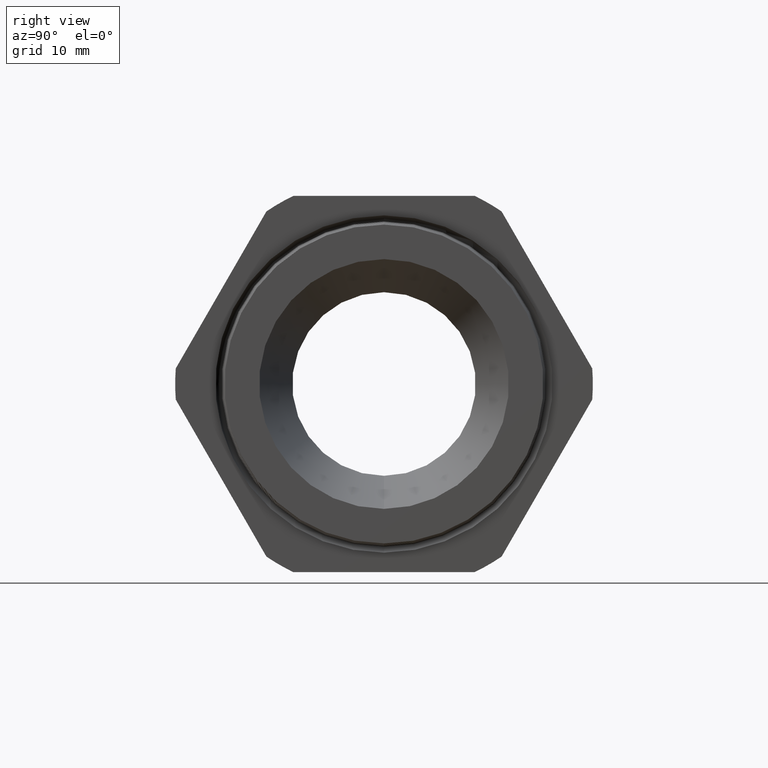
[diagram: clean part render]
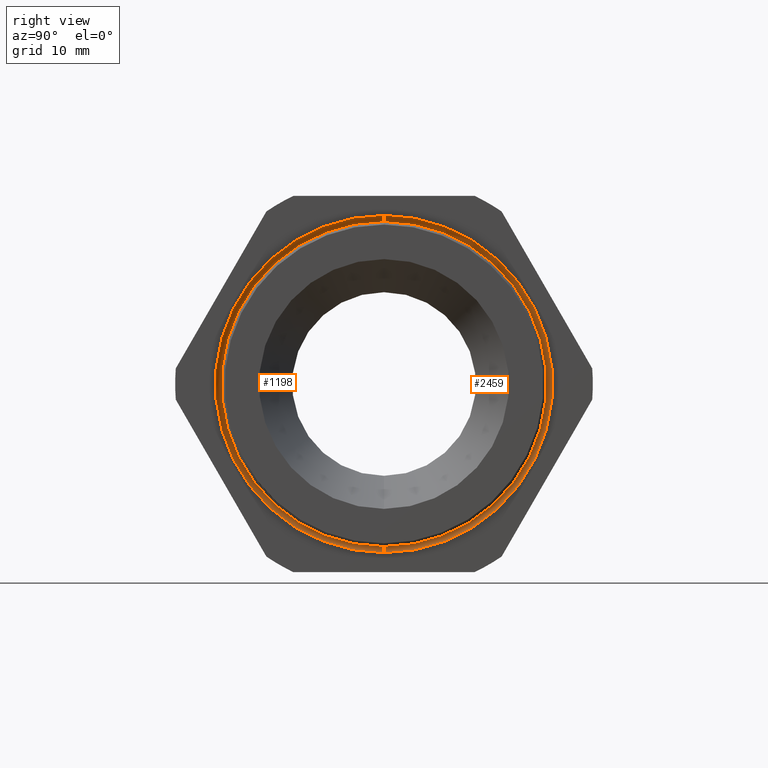
[diagram: same view with one multi-face feature highlighted, each face labeled with its STEP entity id]
A machine part, right view. The highlighted faces form ONE feature: a constant-radius fillet chain: 2 tangent blend faces with common blend radius 0.9525 mm. The faces share edges in the B-rep.
Their STEP definitions:
[1] entity #1198 (Torus):
#1139 = EDGE_CURVE ( 'NONE', #1140, #1153, #2659, .T. ) ;
#1140 = VERTEX_POINT ( 'NONE', #2654 ) ;
#1142 = ORIENTED_EDGE ( 'NONE', *, *, #1143, .F. ) ;
#1143 = EDGE_CURVE ( 'NONE', #1210, #1140, #2652, .T. ) ;
#1151 = ORIENTED_EDGE ( 'NONE', *, *, #1139, .F. ) ;
#1152 = EDGE_CURVE ( 'NONE', #1212, #1153, #2693, .T. ) ;
#1153 = VERTEX_POINT ( 'NONE', #2688 ) ;
#1198 = ADVANCED_FACE ( 'NONE', ( #2786 ), #2785, .F. ) ;
#1199 = EDGE_LOOP ( 'NONE', ( #1207, #1208, #1151, #1142 ) ) ;
#1207 = ORIENTED_EDGE ( 'NONE', *, *, #1215, .F. ) ;
#1208 = ORIENTED_EDGE ( 'NONE', *, *, #1152, .T. ) ;
#1210 = VERTEX_POINT ( 'NONE', #2830 ) ;
#1212 = VERTEX_POINT ( 'NONE', #2829 ) ;
#1215 = EDGE_CURVE ( 'NONE', #1212, #1210, #2828, .T. ) ;
#2648 = DIRECTION ( 'NONE',  ( 0.0000000000000000000, 0.0000000000000000000, -1.000000000000000000 ) ) ;
#2649 = DIRECTION ( 'NONE',  ( 0.0000000000000000000, -1.000000000000000000, 0.0000000000000000000 ) ) ;
#2650 = CARTESIAN_POINT ( 'NONE',  ( -0.3089999999999999400, 0.0000000000000000000, -0.8990656650015197400 ) ) ;
#2651 = AXIS2_PLACEMENT_3D ( 'NONE', #2650, #2649, #2648 ) ;
#2652 = CIRCLE ( 'NONE', #2651, 0.03749999999999994300 ) ;
#2654 = CARTESIAN_POINT ( 'NONE',  ( -0.3100000000000000000, 0.0000000000000000000, -0.9365523292969728500 ) ) ;
#2655 = DIRECTION ( 'NONE',  ( 0.0000000000000000000, 0.0000000000000000000, -1.000000000000000000 ) ) ;
#2656 = DIRECTION ( 'NONE',  ( -1.000000000000000000, 0.0000000000000000000, 0.0000000000000000000 ) ) ;
#2657 = CARTESIAN_POINT ( 'NONE',  ( -0.3100000000000000000, 0.0000000000000000000, 0.0000000000000000000 ) ) ;
#2658 = AXIS2_PLACEMENT_3D ( 'NONE', #2657, #2656, #2655 ) ;
#2659 = CIRCLE ( 'NONE', #2658, 0.9365523292969728500 ) ;
#2688 = CARTESIAN_POINT ( 'NONE',  ( -0.3100000000000000000, 1.146945812307535500E-016, 0.9365523292969728500 ) ) ;
#2689 = DIRECTION ( 'NONE',  ( 0.0000000000000000000, 1.224646799147353700E-016, 1.000000000000000000 ) ) ;
#2690 = DIRECTION ( 'NONE',  ( 0.0000000000000000000, 1.000000000000000000, -1.224646799147353200E-016 ) ) ;
#2691 = CARTESIAN_POINT ( 'NONE',  ( -0.3089999999999999400, 1.101037888867397800E-016, 0.8990656650015197400 ) ) ;
#2692 = AXIS2_PLACEMENT_3D ( 'NONE', #2691, #2690, #2689 ) ;
#2693 = CIRCLE ( 'NONE', #2692, 0.03749999999999994300 ) ;
#2781 = DIRECTION ( 'NONE',  ( 0.0000000000000000000, 0.0000000000000000000, -1.000000000000000000 ) ) ;
#2782 = DIRECTION ( 'NONE',  ( 1.000000000000000000, 0.0000000000000000000, 0.0000000000000000000 ) ) ;
#2783 = CARTESIAN_POINT ( 'NONE',  ( -0.3089999999999999400, 0.0000000000000000000, 0.0000000000000000000 ) ) ;
#2784 = AXIS2_PLACEMENT_3D ( 'NONE', #2783, #2782, #2781 ) ;
#2785 = TOROIDAL_SURFACE ( 'NONE', #2784, 0.8990656650015197400, 0.03749999999999999900 ) ;
#2786 = FACE_OUTER_BOUND ( 'NONE', #1199, .T. ) ;
#2824 = DIRECTION ( 'NONE',  ( 0.0000000000000000000, 0.0000000000000000000, -1.000000000000000000 ) ) ;
#2825 = DIRECTION ( 'NONE',  ( 1.000000000000000000, 0.0000000000000000000, 0.0000000000000000000 ) ) ;
#2826 = CARTESIAN_POINT ( 'NONE',  ( -0.3089999999999999400, 0.0000000000000000000, 0.0000000000000000000 ) ) ;
#2827 = AXIS2_PLACEMENT_3D ( 'NONE', #2826, #2825, #2824 ) ;
#2828 = CIRCLE ( 'NONE', #2827, 0.8615656650015197600 ) ;
#2829 = CARTESIAN_POINT ( 'NONE',  ( -0.3089999999999999400, 1.055113633899371900E-016, 0.8615656650015197600 ) ) ;
#2830 = CARTESIAN_POINT ( 'NONE',  ( -0.3089999999999999400, 0.0000000000000000000, -0.8615656650015197600 ) ) ;
[2] entity #2459 (Torus):
#716 = DIRECTION ( 'NONE',  ( 0.0000000000000000000, 0.0000000000000000000, -1.000000000000000000 ) ) ;
#717 = DIRECTION ( 'NONE',  ( 1.000000000000000000, 0.0000000000000000000, 0.0000000000000000000 ) ) ;
#718 = AXIS2_PLACEMENT_3D ( 'NONE', #726, #717, #716 ) ;
#719 = TOROIDAL_SURFACE ( 'NONE', #718, 0.8990656650015197400, 0.03749999999999999900 ) ;
#720 = FACE_OUTER_BOUND ( 'NONE', #2460, .T. ) ;
#726 = CARTESIAN_POINT ( 'NONE',  ( -0.3089999999999999400, 0.0000000000000000000, 0.0000000000000000000 ) ) ;
#1140 = VERTEX_POINT ( 'NONE', #2654 ) ;
#1143 = EDGE_CURVE ( 'NONE', #1210, #1140, #2652, .T. ) ;
#1152 = EDGE_CURVE ( 'NONE', #1212, #1153, #2693, .T. ) ;
#1153 = VERTEX_POINT ( 'NONE', #2688 ) ;
#1210 = VERTEX_POINT ( 'NONE', #2830 ) ;
#1212 = VERTEX_POINT ( 'NONE', #2829 ) ;
#1271 = EDGE_CURVE ( 'NONE', #1210, #1212, #2901, .T. ) ;
#1707 = EDGE_CURVE ( 'NONE', #1153, #1140, #3759, .T. ) ;
#2459 = ADVANCED_FACE ( 'NONE', ( #720 ), #719, .F. ) ;
#2460 = EDGE_LOOP ( 'NONE', ( #2461, #2462, #2463, #2464 ) ) ;
#2461 = ORIENTED_EDGE ( 'NONE', *, *, #1271, .F. ) ;
#2462 = ORIENTED_EDGE ( 'NONE', *, *, #1143, .T. ) ;
#2463 = ORIENTED_EDGE ( 'NONE', *, *, #1707, .F. ) ;
#2464 = ORIENTED_EDGE ( 'NONE', *, *, #1152, .F. ) ;
#2648 = DIRECTION ( 'NONE',  ( 0.0000000000000000000, 0.0000000000000000000, -1.000000000000000000 ) ) ;
#2649 = DIRECTION ( 'NONE',  ( 0.0000000000000000000, -1.000000000000000000, 0.0000000000000000000 ) ) ;
#2650 = CARTESIAN_POINT ( 'NONE',  ( -0.3089999999999999400, 0.0000000000000000000, -0.8990656650015197400 ) ) ;
#2651 = AXIS2_PLACEMENT_3D ( 'NONE', #2650, #2649, #2648 ) ;
#2652 = CIRCLE ( 'NONE', #2651, 0.03749999999999994300 ) ;
#2654 = CARTESIAN_POINT ( 'NONE',  ( -0.3100000000000000000, 0.0000000000000000000, -0.9365523292969728500 ) ) ;
#2688 = CARTESIAN_POINT ( 'NONE',  ( -0.3100000000000000000, 1.146945812307535500E-016, 0.9365523292969728500 ) ) ;
#2689 = DIRECTION ( 'NONE',  ( 0.0000000000000000000, 1.224646799147353700E-016, 1.000000000000000000 ) ) ;
#2690 = DIRECTION ( 'NONE',  ( 0.0000000000000000000, 1.000000000000000000, -1.224646799147353200E-016 ) ) ;
#2691 = CARTESIAN_POINT ( 'NONE',  ( -0.3089999999999999400, 1.101037888867397800E-016, 0.8990656650015197400 ) ) ;
#2692 = AXIS2_PLACEMENT_3D ( 'NONE', #2691, #2690, #2689 ) ;
#2693 = CIRCLE ( 'NONE', #2692, 0.03749999999999994300 ) ;
#2829 = CARTESIAN_POINT ( 'NONE',  ( -0.3089999999999999400, 1.055113633899371900E-016, 0.8615656650015197600 ) ) ;
#2830 = CARTESIAN_POINT ( 'NONE',  ( -0.3089999999999999400, 0.0000000000000000000, -0.8615656650015197600 ) ) ;
#2897 = DIRECTION ( 'NONE',  ( 0.0000000000000000000, 0.0000000000000000000, -1.000000000000000000 ) ) ;
#2898 = DIRECTION ( 'NONE',  ( 1.000000000000000000, 0.0000000000000000000, 0.0000000000000000000 ) ) ;
#2899 = CARTESIAN_POINT ( 'NONE',  ( -0.3089999999999999400, 0.0000000000000000000, 0.0000000000000000000 ) ) ;
#2900 = AXIS2_PLACEMENT_3D ( 'NONE', #2899, #2898, #2897 ) ;
#2901 = CIRCLE ( 'NONE', #2900, 0.8615656650015197600 ) ;
#3755 = DIRECTION ( 'NONE',  ( 0.0000000000000000000, 0.0000000000000000000, -1.000000000000000000 ) ) ;
#3756 = DIRECTION ( 'NONE',  ( -1.000000000000000000, 0.0000000000000000000, 0.0000000000000000000 ) ) ;
#3757 = CARTESIAN_POINT ( 'NONE',  ( -0.3100000000000000000, 0.0000000000000000000, 0.0000000000000000000 ) ) ;
#3758 = AXIS2_PLACEMENT_3D ( 'NONE', #3757, #3756, #3755 ) ;
#3759 = CIRCLE ( 'NONE', #3758, 0.9365523292969728500 ) ;